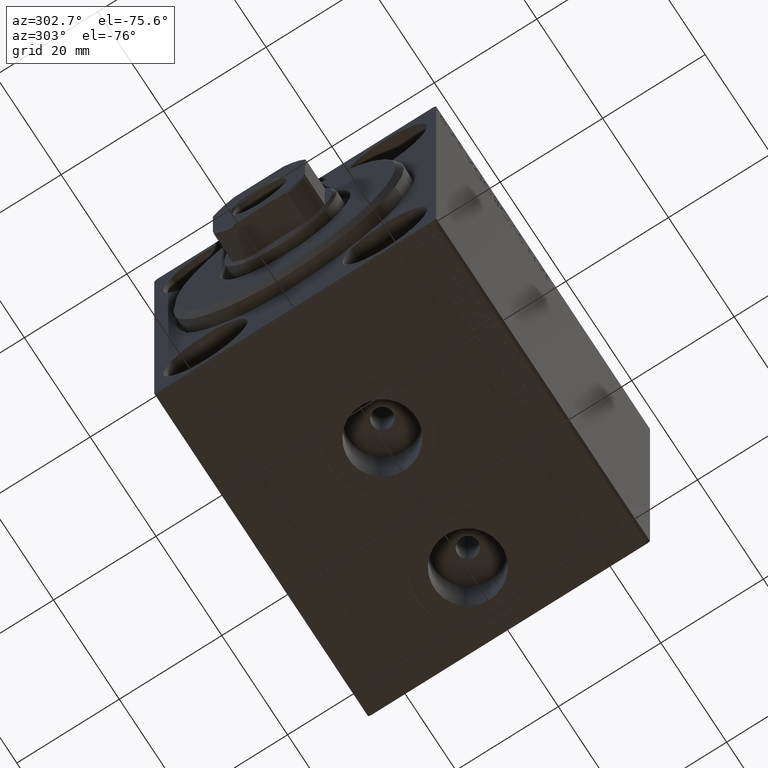
[diagram: clean part render]
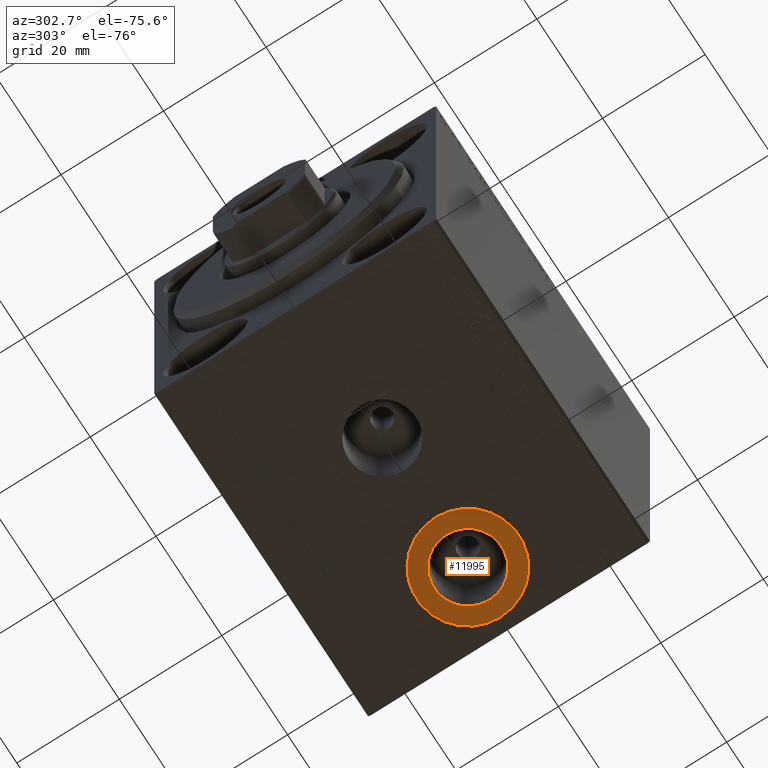
[diagram: same view with one face highlighted and labeled with its STEP entity id]
A machine part, auxiliary view. The second image highlights one B-rep face of the part: STEP entity #11995.
In plain terms, the highlighted planar face has unit normal (0, 0, -1).
Its self-contained STEP definition (entity closure, byte-faithful):
#19 = DIRECTION ( 'NONE',  ( -1.000000000000000000, 0.000000000000000000, -0.000000000000000000 ) ) ;
#615 = DIRECTION ( 'NONE',  ( 0.000000000000000000, 0.000000000000000000, -1.000000000000000000 ) ) ;
#3489 = AXIS2_PLACEMENT_3D ( 'NONE', #29108, #5074, #32199 ) ;
#3848 = AXIS2_PLACEMENT_3D ( 'NONE', #25552, #15767, #36231 ) ;
#4395 = CARTESIAN_POINT ( 'NONE',  ( 59.08000000000000540, -6.717509091415147771E-15, -37.39999999999999858 ) ) ;
#4716 = AXIS2_PLACEMENT_3D ( 'NONE', #39314, #8845, #5289 ) ;
#4777 = AXIS2_PLACEMENT_3D ( 'NONE', #27370, #30927, #19 ) ;
#5074 = DIRECTION ( 'NONE',  ( 0.000000000000000000, 0.000000000000000000, -1.000000000000000000 ) ) ;
#5289 = DIRECTION ( 'NONE',  ( -1.000000000000000000, 0.000000000000000000, 0.000000000000000000 ) ) ;
#6204 = AXIS2_PLACEMENT_3D ( 'NONE', #38396, #615, #7931 ) ;
#6503 = ORIENTED_EDGE ( 'NONE', *, *, #12510, .T. ) ;
#6960 = CARTESIAN_POINT ( 'NONE',  ( 62.50000000000000000, -6.298679886106752176E-15, -37.39999999999999858 ) ) ;
#7931 = DIRECTION ( 'NONE',  ( -1.000000000000000000, 0.000000000000000000, 0.000000000000000000 ) ) ;
#8758 = VERTEX_POINT ( 'NONE', #6960 ) ;
#8845 = DIRECTION ( 'NONE',  ( 0.000000000000000000, 0.000000000000000000, -1.000000000000000000 ) ) ;
#9162 = CIRCLE ( 'NONE', #3489, 6.580000000000002736 ) ;
#9909 = EDGE_CURVE ( 'NONE', #8758, #13954, #28845, .T. ) ;
#10243 = FACE_OUTER_BOUND ( 'NONE', #42833, .T. ) ;
#11612 = ORIENTED_EDGE ( 'NONE', *, *, #24175, .F. ) ;
#11995 = ADVANCED_FACE ( 'NONE', ( #20026, #10243 ), #33591, .T. ) ;
#12510 = EDGE_CURVE ( 'NONE', #13954, #8758, #16853, .T. ) ;
#13954 = VERTEX_POINT ( 'NONE', #19807 ) ;
#15767 = DIRECTION ( 'NONE',  ( 0.000000000000000000, 0.000000000000000000, -1.000000000000000000 ) ) ;
#15928 = CIRCLE ( 'NONE', #3848, 6.580000000000002736 ) ;
#16853 = CIRCLE ( 'NONE', #6204, 10.00000000000000178 ) ;
#17825 = EDGE_CURVE ( 'NONE', #25186, #38474, #9162, .T. ) ;
#19807 = CARTESIAN_POINT ( 'NONE',  ( 42.50000000000000000, -7.523326685254106813E-15, -37.39999999999999858 ) ) ;
#20026 = FACE_BOUND ( 'NONE', #34709, .T. ) ;
#24175 = EDGE_CURVE ( 'NONE', #38474, #25186, #15928, .T. ) ;
#24194 = CARTESIAN_POINT ( 'NONE',  ( 45.92000000000000171, -7.523326685254106813E-15, -37.39999999999999858 ) ) ;
#24754 = ORIENTED_EDGE ( 'NONE', *, *, #9909, .T. ) ;
#25186 = VERTEX_POINT ( 'NONE', #4395 ) ;
#25552 = CARTESIAN_POINT ( 'NONE',  ( 52.50000000000000711, -7.523326685254106813E-15, -37.39999999999999858 ) ) ;
#26058 = ORIENTED_EDGE ( 'NONE', *, *, #17825, .F. ) ;
#27370 = CARTESIAN_POINT ( 'NONE',  ( 52.50000000000000711, -7.523326685254106813E-15, -37.39999999999999858 ) ) ;
#28845 = CIRCLE ( 'NONE', #4716, 10.00000000000000178 ) ;
#29108 = CARTESIAN_POINT ( 'NONE',  ( 52.50000000000000711, -7.523326685254106813E-15, -37.39999999999999858 ) ) ;
#30927 = DIRECTION ( 'NONE',  ( 0.000000000000000000, 0.000000000000000000, -1.000000000000000000 ) ) ;
#32199 = DIRECTION ( 'NONE',  ( -1.000000000000000000, 0.000000000000000000, 0.000000000000000000 ) ) ;
#33591 = PLANE ( 'NONE',  #4777 ) ;
#34709 = EDGE_LOOP ( 'NONE', ( #11612, #26058 ) ) ;
#36231 = DIRECTION ( 'NONE',  ( -1.000000000000000000, 0.000000000000000000, 0.000000000000000000 ) ) ;
#38396 = CARTESIAN_POINT ( 'NONE',  ( 52.50000000000000711, -7.523326685254106813E-15, -37.39999999999999858 ) ) ;
#38474 = VERTEX_POINT ( 'NONE', #24194 ) ;
#39314 = CARTESIAN_POINT ( 'NONE',  ( 52.50000000000000711, -7.523326685254106813E-15, -37.39999999999999858 ) ) ;
#42833 = EDGE_LOOP ( 'NONE', ( #6503, #24754 ) ) ;